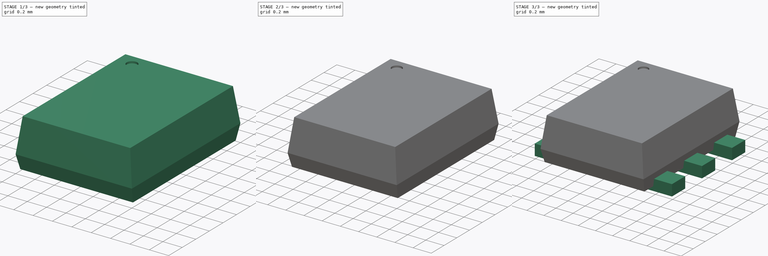
[diagram: build sequence overview — one tinted view per stage of 3, left to right]
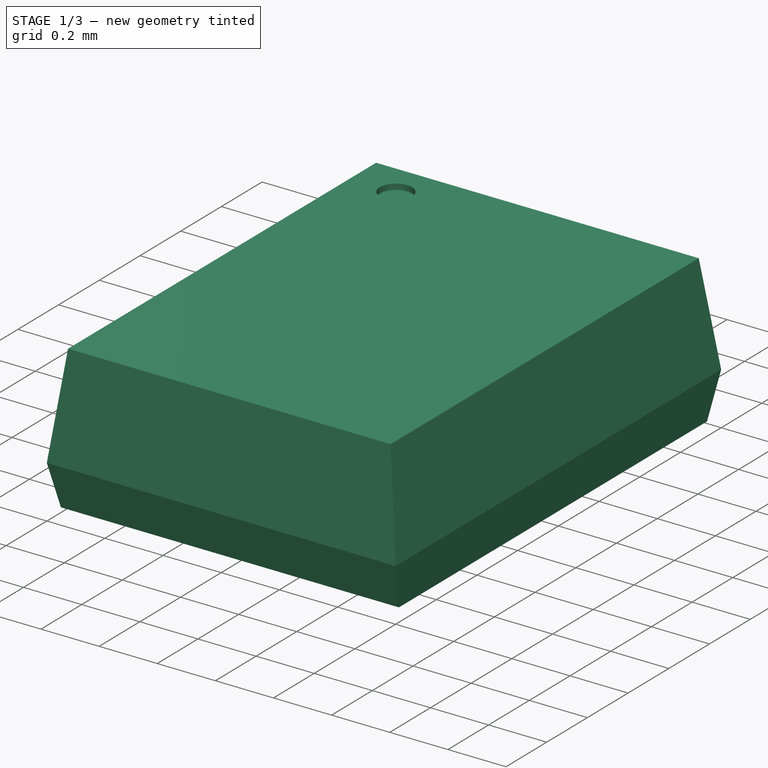
[diagram: stage 1 of 3 — iso view after this stage's code; geometry added in this stage tinted green]
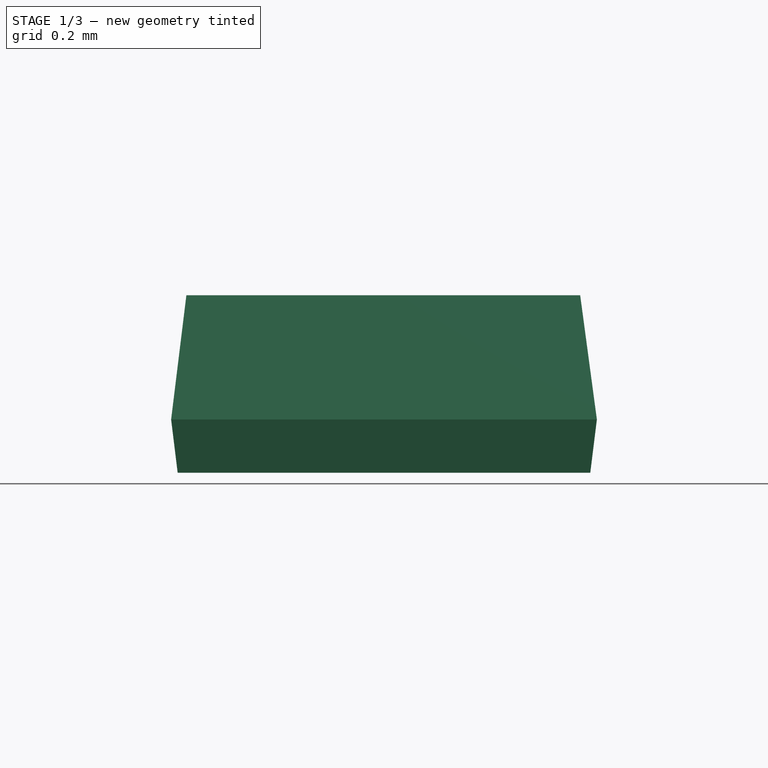
[diagram: stage 1 of 3 — front view after this stage's code; geometry added in this stage tinted green]
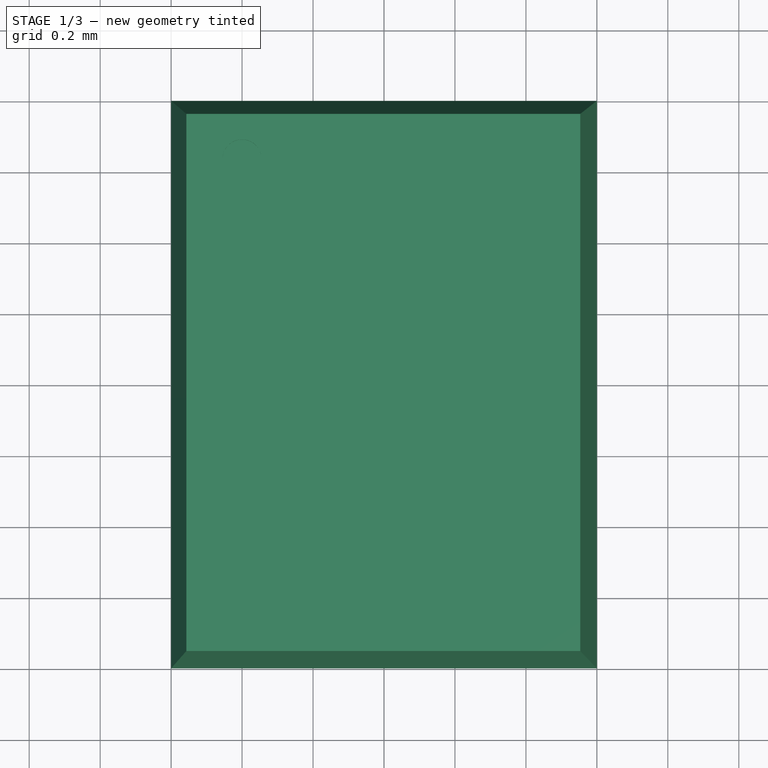
[diagram: stage 1 of 3 — top view after this stage's code; geometry added in this stage tinted green]
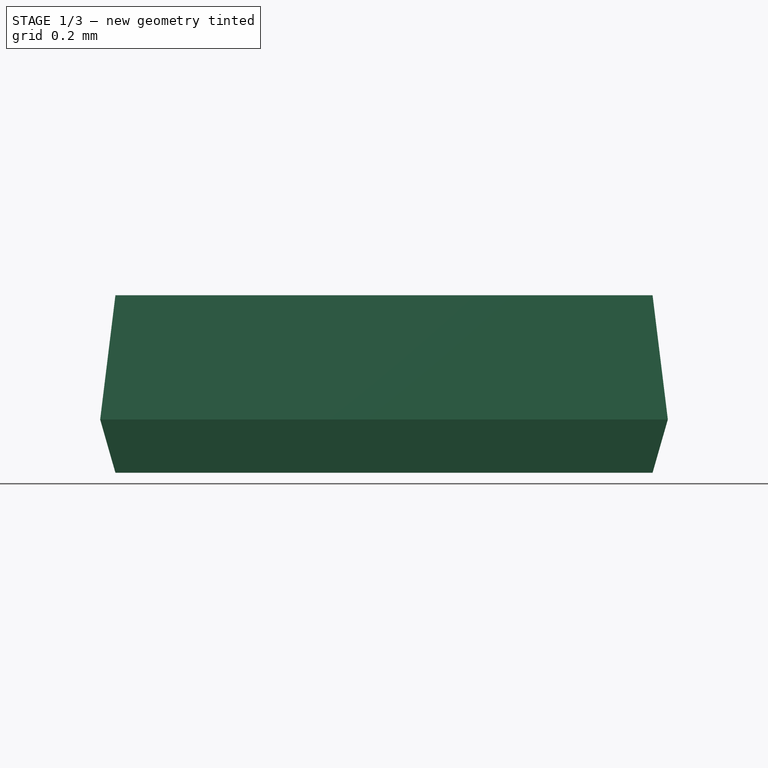
[diagram: stage 1 of 3 — right view after this stage's code; geometry added in this stage tinted green]
FCSTD DOCUMENT  (FreeCAD 0.16R6703 (Git))
Label: SOT-563
License: All rights reserved
LicenseURL: http://en.wikipedia.org/wiki/All_rights_reserved
objects: Sketcher::SketchObject×5, Part::FeaturePython×3, Part::Loft×1, PartDesign::Pad×1, PartDesign::Pocket×1, App::DocumentObjectGroup×1
note: 13 computed .brp shape members not serialized (recipe doc carries the construction recipe); baked Part::Feature solids carry a one-line shape summary decoded from their .brp

FEATURE [Sketcher::SketchObject] Sketch  label="body-sketch-bottom"
  Placement = pos=(-8.23068e-05,-2.54106e-05,0.0499995) rot=(0,0,1;0rad)
  sketch-geometry (4):
    g0: LineSegment StartX=-0.5815 StartY=0.757 StartZ=0 EndX=0.5815 EndY=0.757 EndZ=0
    g1: LineSegment StartX=0.5815 StartY=0.757 StartZ=0 EndX=0.5815 EndY=-0.757 EndZ=0
    g2: LineSegment StartX=0.5815 StartY=-0.757 StartZ=0 EndX=-0.5815 EndY=-0.757 EndZ=0
    g3: LineSegment StartX=-0.5815 StartY=-0.757 StartZ=0 EndX=-0.5815 EndY=0.757 EndZ=0
  constraints (11):
    c: Coincident(g0,g1)
    c: Coincident(g1,g2)
    c: Coincident(g2,g3)
    c: Coincident(g3,g0)
    c: Horizontal(g0)
    c: Horizontal(g2)
    c: Vertical(g1)
    c: Vertical(g3)
    c: Symmetric(g0,g1,g-1)
    c: DistanceX(g0,g0) = 1.163
    c: DistanceY(g1,g1) = 1.514
FEATURE [Sketcher::SketchObject] Sketch001  label="body-sketch-middle"
  Placement = pos=(9.536e-09,-7.158e-09,0.2) rot=(0,0,1;0rad)
  sketch-geometry (4):
    g0: LineSegment StartX=-0.6 StartY=0.8 StartZ=0 EndX=0.6 EndY=0.8 EndZ=0
    g1: LineSegment StartX=0.6 StartY=0.8 StartZ=0 EndX=0.6 EndY=-0.8 EndZ=0
    g2: LineSegment StartX=0.6 StartY=-0.8 StartZ=0 EndX=-0.6 EndY=-0.8 EndZ=0
    g3: LineSegment StartX=-0.6 StartY=-0.8 StartZ=0 EndX=-0.6 EndY=0.8 EndZ=0
  constraints (11):
    c: Coincident(g0,g1)
    c: Coincident(g1,g2)
    c: Coincident(g2,g3)
    c: Coincident(g3,g0)
    c: Horizontal(g0)
    c: Horizontal(g2)
    c: Vertical(g1)
    c: Vertical(g3)
    c: Symmetric(g0,g1,g-1)
    c: DistanceX(g0,g0) = 1.2
    c: DistanceY(g1,g1) = 1.6
FEATURE [Sketcher::SketchObject] Sketch002  label="body-sketch-top"
  Placement = pos=(-0.00202539,-2.54103e-05,0.55) rot=(0,0,1;0rad)
  sketch-geometry (4):
    g0: LineSegment StartX=-0.555 StartY=0.757 StartZ=0 EndX=0.555 EndY=0.757 EndZ=0
    g1: LineSegment StartX=0.555 StartY=0.757 StartZ=0 EndX=0.555 EndY=-0.757 EndZ=0
    g2: LineSegment StartX=0.555 StartY=-0.757 StartZ=0 EndX=-0.555 EndY=-0.757 EndZ=0
    g3: LineSegment StartX=-0.555 StartY=-0.757 StartZ=0 EndX=-0.555 EndY=0.757 EndZ=0
  constraints (11):
    c: Coincident(g0,g1)
    c: Coincident(g1,g2)
    c: Coincident(g2,g3)
    c: Coincident(g3,g0)
    c: Horizontal(g0)
    c: Horizontal(g2)
    c: Vertical(g1)
    c: Vertical(g3)
    c: Symmetric(g0,g1,g-1)
    c: DistanceX(g0,g0) = 1.11
    c: DistanceY(g1,g1) = 1.514
FEATURE [Part::Loft] Loft  label="body-src"
  Closed = false
  Ruled = true
  Sections = -> [Sketch,Sketch001,Sketch002]
  Solid = true
FEATURE [Sketcher::SketchObject] Sketch004
  Placement = pos=(0,0,0.55) rot=(0,0,1;0rad)
  Support = -> Loft [Face10]
  sketch-geometry (1):
    g0: Circle CenterX=-0.4 CenterY=0.63 CenterZ=0 NormalX=0 NormalY=0 NormalZ=1 Radius=0.055
  constraints (3):
    c: Radius(g0) = 0.055
    c: DistanceY(g-1,g0) = 0.63
    c: DistanceX(g0,g-1) = 0.4
FEATURE [PartDesign::Pocket] Pocket  label="body-src-mark"
  Length = 0.02
  Sketch = -> Sketch004
  Type = 0
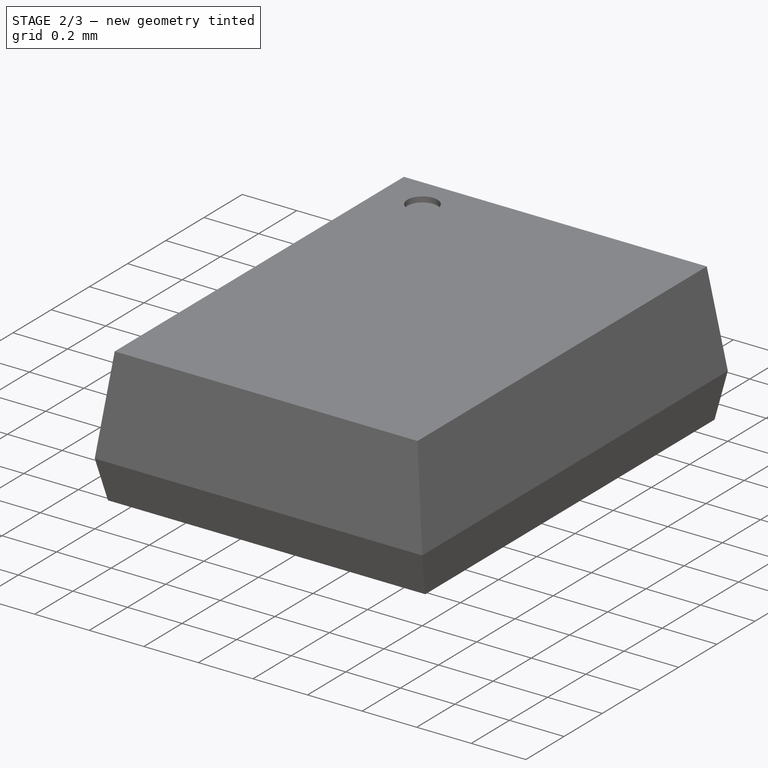
[diagram: stage 2 of 3 — iso view after this stage's code; geometry added in this stage tinted green]
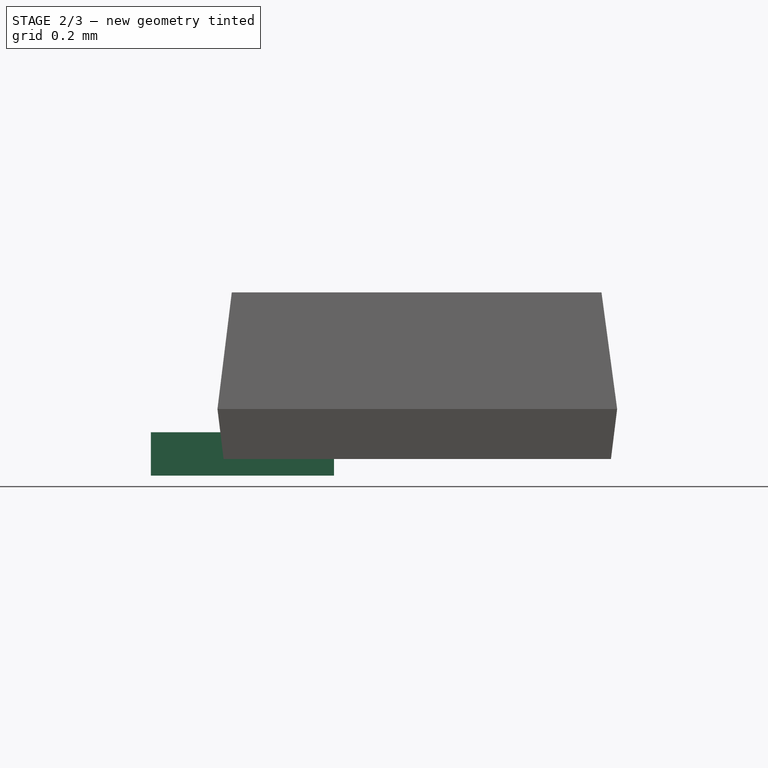
[diagram: stage 2 of 3 — front view after this stage's code; geometry added in this stage tinted green]
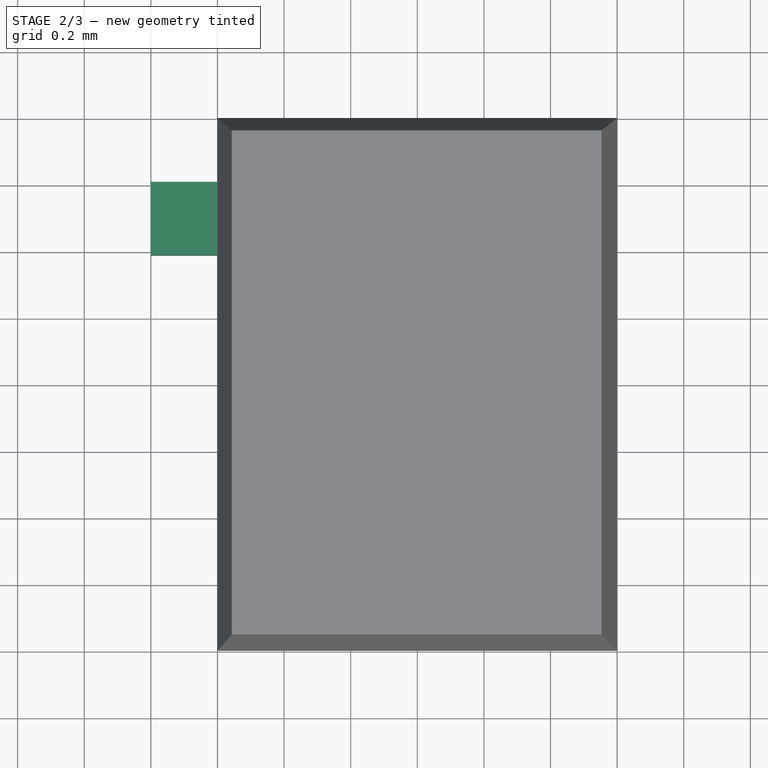
[diagram: stage 2 of 3 — top view after this stage's code; geometry added in this stage tinted green]
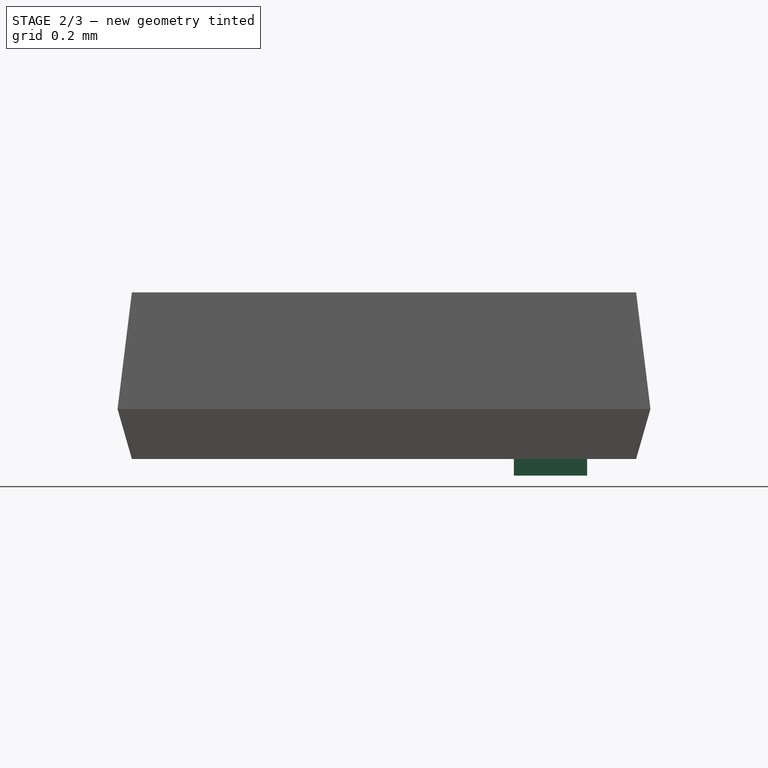
[diagram: stage 2 of 3 — right view after this stage's code; geometry added in this stage tinted green]
FEATURE [Sketcher::SketchObject] Sketch003  label="pad-sketch"
  Placement = pos=(-0.25,0.61,-4.88758e-07) rot=(0,0,1;0rad)
  sketch-geometry (4):
    g0: LineSegment StartX=-0.55 StartY=0 StartZ=0 EndX=0 EndY=0 EndZ=0
    g1: LineSegment StartX=0 StartY=0 StartZ=0 EndX=0 EndY=-0.22 EndZ=0
    g2: LineSegment StartX=0 StartY=-0.22 StartZ=0 EndX=-0.55 EndY=-0.22 EndZ=0
    g3: LineSegment StartX=-0.55 StartY=-0.22 StartZ=0 EndX=-0.55 EndY=0 EndZ=0
  constraints (11):
    c: Coincident(g0,g1)
    c: Coincident(g1,g2)
    c: Coincident(g2,g3)
    c: Coincident(g3,g0)
    c: Horizontal(g0)
    c: Horizontal(g2)
    c: Vertical(g1)
    c: Vertical(g3)
    c: Coincident(g0,g-1)
    c: DistanceX(g0,g0) = 0.55
    c: DistanceY(g1,g1) = 0.22
FEATURE [PartDesign::Pad] Pad  label="Pad1-src"
  Length = 0.13
  Length2 = 100
  Placement = pos=(-0.25,0.61,-4.88758e-07) rot=(0,0,1;0rad)
  Sketch = -> Sketch003
  Type = 0
FEATURE [App::DocumentObjectGroup] Group  label="src"
  Group = -> [Loft,Pad,Array,Pocket]
FEATURE [Part::FeaturePython] Clone  label="body"  # Draft clone (typed FeaturePython)
  Objects = -> [Pocket]
  Scale = (1,1,1)
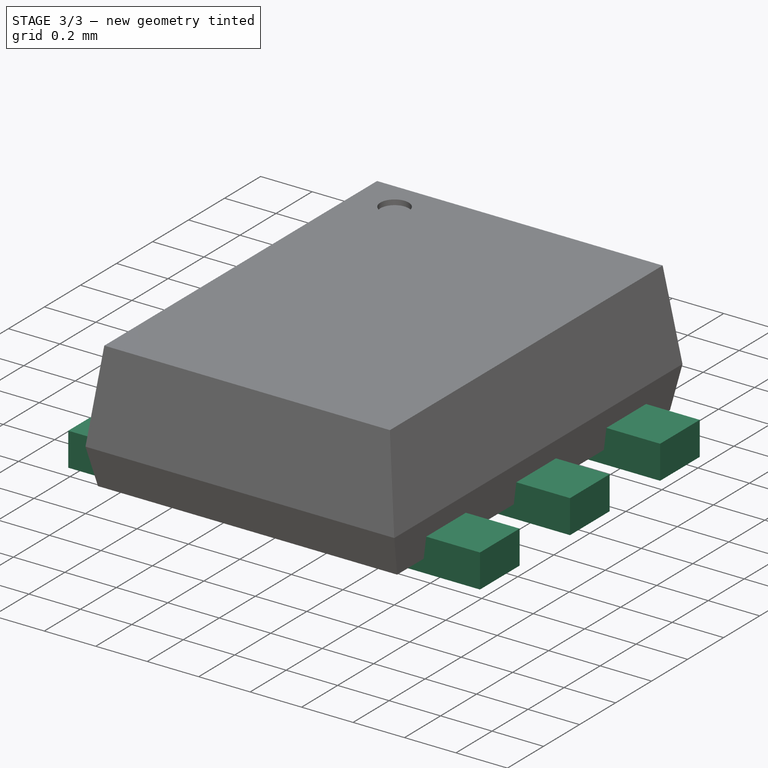
[diagram: stage 3 of 3 — iso view after this stage's code; geometry added in this stage tinted green]
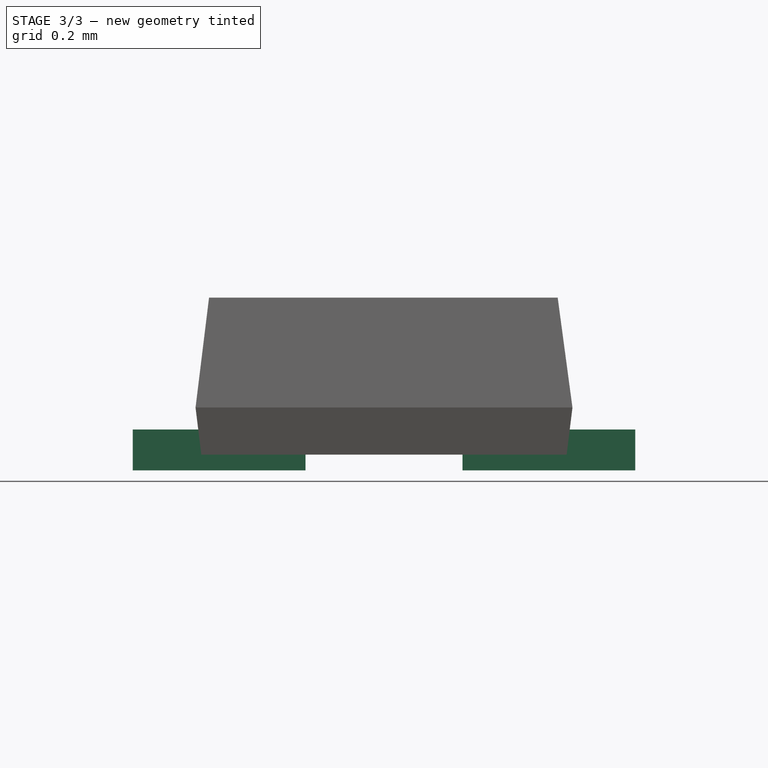
[diagram: stage 3 of 3 — front view after this stage's code; geometry added in this stage tinted green]
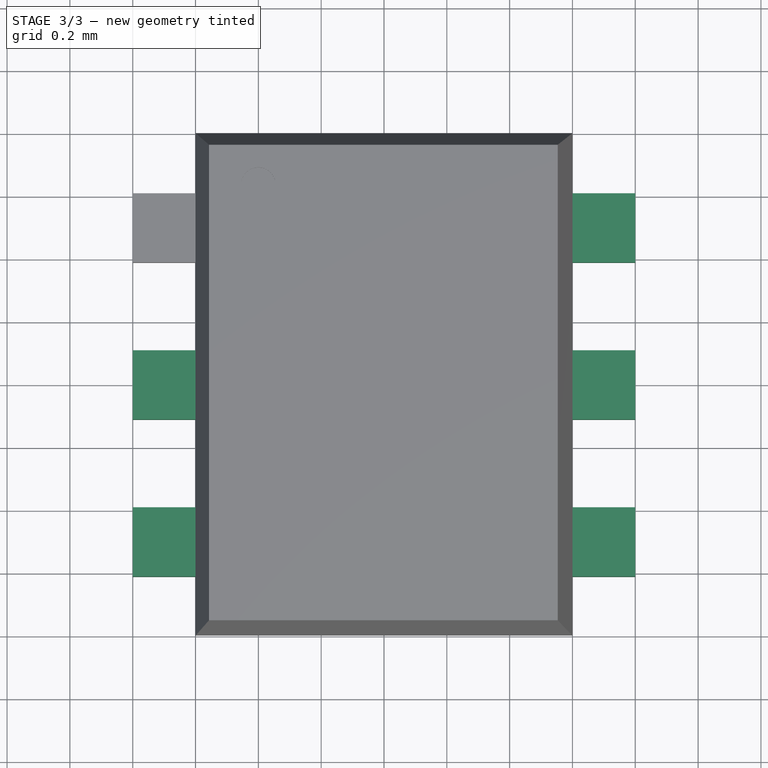
[diagram: stage 3 of 3 — top view after this stage's code; geometry added in this stage tinted green]
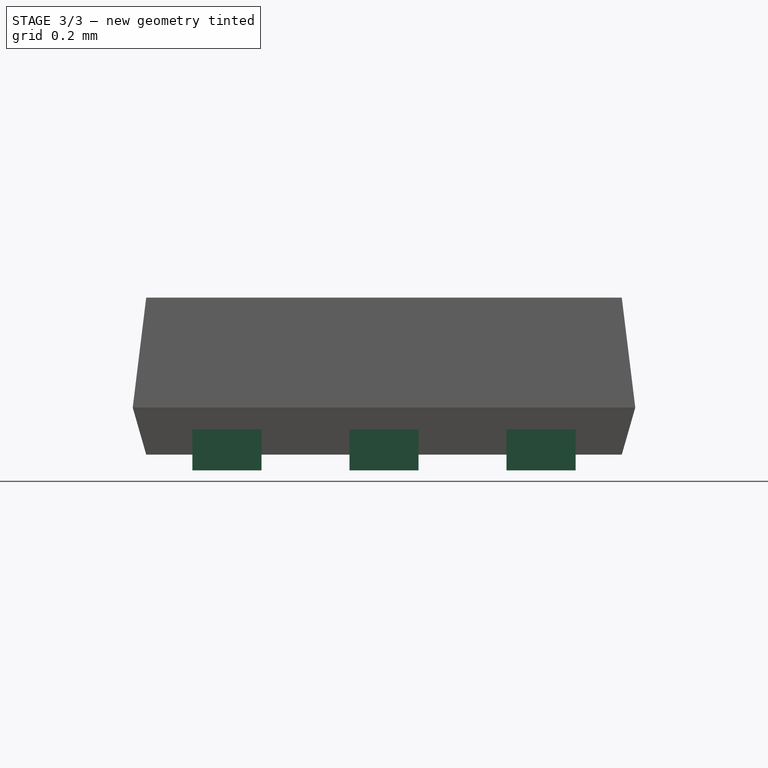
[diagram: stage 3 of 3 — right view after this stage's code; geometry added in this stage tinted green]
FEATURE [Part::FeaturePython] Array  label="pads-src"  # Draft array (typed FeaturePython)
  Angle = 360
  ArrayType = 0
  Axis = (0,0,1)
  Base = -> Pad
  Center = (0,0,0)
  Fuse = false
  IntervalAxis = (0,0,0)
  IntervalX = (1.05,0,0)
  IntervalY = (0,-0.5,0)
  IntervalZ = (0,0,0)
  NumberPolar = 1
  NumberX = 2
  NumberY = 3
  NumberZ = 1
FEATURE [Part::FeaturePython] Clone001  label="pads"  # Draft clone (typed FeaturePython)
  Objects = -> [Array]
  Scale = (1,1,1)
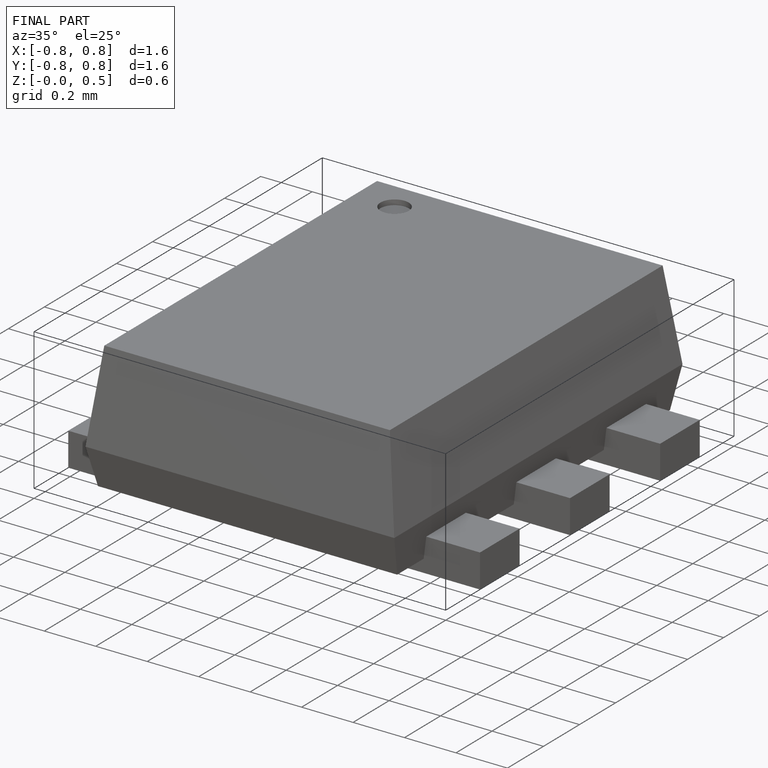
[diagram: finished part — iso view with bounding-box wireframe]
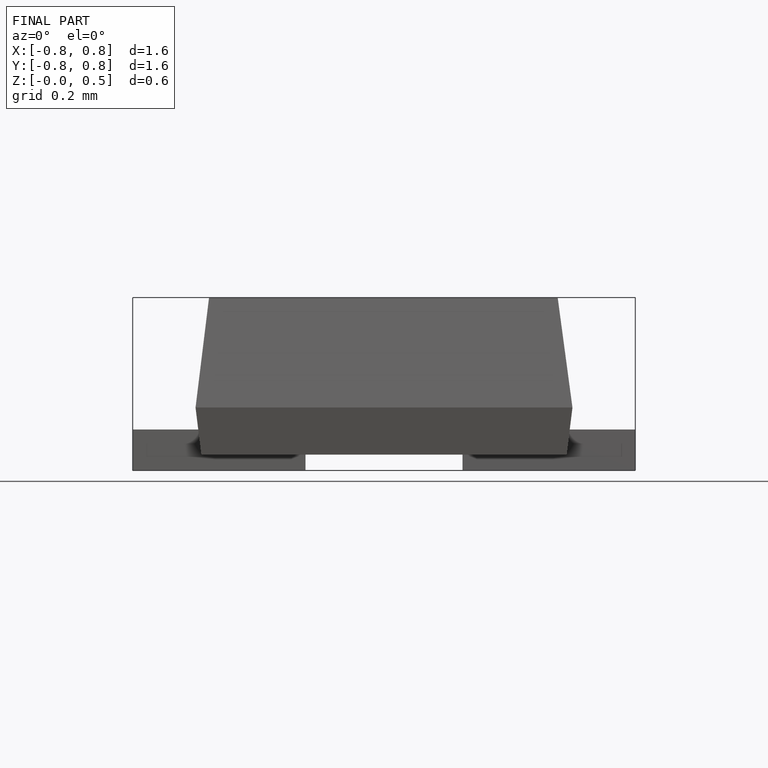
[diagram: finished part — front view with bounding-box wireframe]
